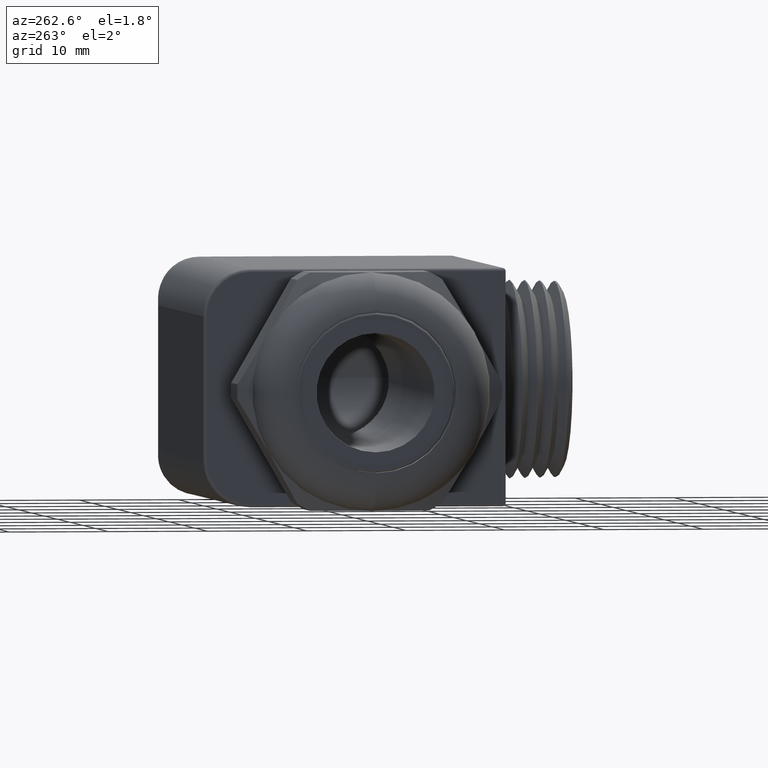
[diagram: clean part render]
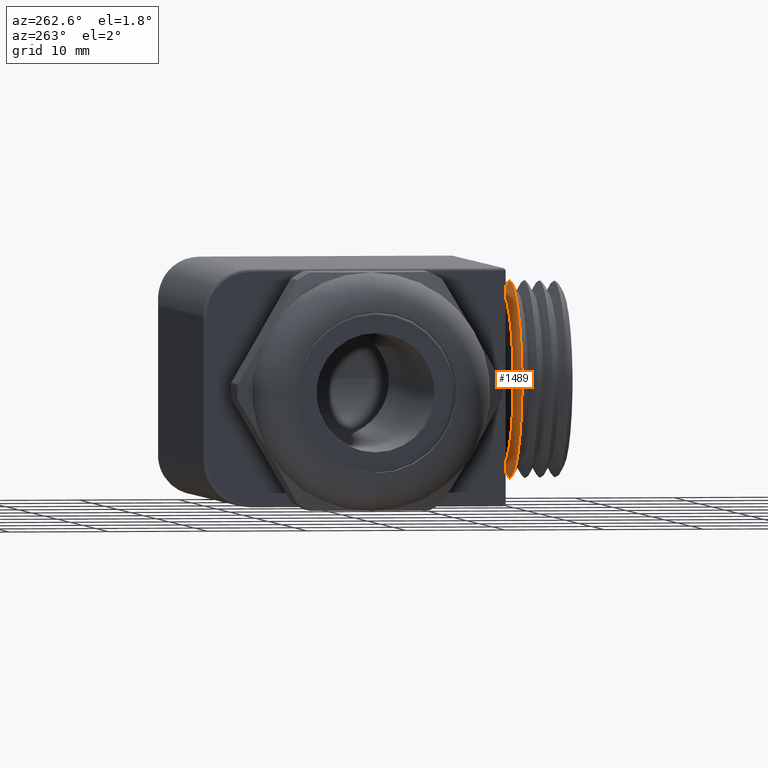
[diagram: same view with one face highlighted and labeled with its STEP entity id]
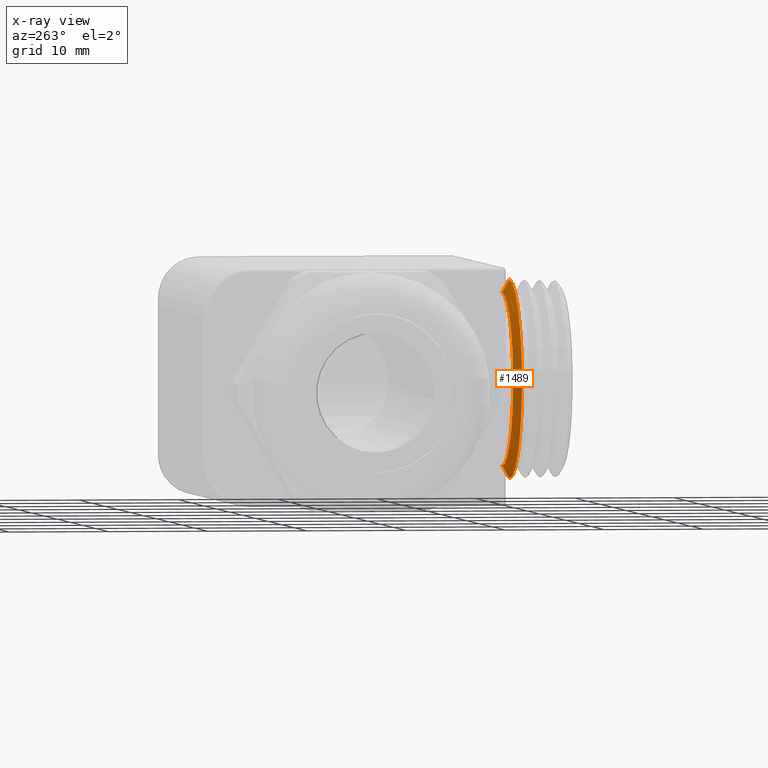
[diagram: x-ray of the same camera — body ghosted, the highlighted face saturated]
A machine part, auxiliary view. The second image highlights one B-rep face of the part: STEP entity #1489.
The next image is the same camera in x-ray: the body ghosted, the highlighted face saturated — about 2% of this face is hidden behind the body in this view.
In plain terms, the highlighted conical surface has half-angle 60 deg.
Its self-contained STEP definition (entity closure, byte-faithful):
#943 = VERTEX_POINT ( 'NONE', #3411 ) ;
#945 = VERTEX_POINT ( 'NONE', #3430 ) ;
#957 = VERTEX_POINT ( 'NONE', #3383 ) ;
#986 = EDGE_CURVE ( 'NONE', #945, #1066, #3337, .T. ) ;
#1066 = VERTEX_POINT ( 'NONE', #3568 ) ;
#1071 = EDGE_CURVE ( 'NONE', #943, #945, #3514, .T. ) ;
#1083 = EDGE_CURVE ( 'NONE', #957, #1066, #3533, .T. ) ;
#1188 = EDGE_CURVE ( 'NONE', #943, #957, #3678, .T. ) ;
#1407 = EDGE_LOOP ( 'NONE', ( #1434, #1422, #1420, #1427 ) ) ;
#1420 = ORIENTED_EDGE ( 'NONE', *, *, #1071, .T. ) ;
#1422 = ORIENTED_EDGE ( 'NONE', *, *, #1188, .F. ) ;
#1427 = ORIENTED_EDGE ( 'NONE', *, *, #986, .T. ) ;
#1434 = ORIENTED_EDGE ( 'NONE', *, *, #1083, .F. ) ;
#1489 = ADVANCED_FACE ( 'NONE', ( #4172 ), #4171, .T. ) ;
#3329 = DIRECTION ( 'NONE',  ( 0.0000000000000000000, 0.0000000000000000000, -1.000000000000000000 ) ) ;
#3330 = DIRECTION ( 'NONE',  ( 0.0000000000000000000, 1.000000000000000000, 0.0000000000000000000 ) ) ;
#3331 = CARTESIAN_POINT ( 'NONE',  ( 1.000155367231638600, -0.7442391749876219300, -2.785979454945908300E-017 ) ) ;
#3332 = AXIS2_PLACEMENT_3D ( 'NONE', #3331, #3330, #3329 ) ;
#3337 = CIRCLE ( 'NONE', #3332, 0.3912229642765701600 ) ;
#3383 = CARTESIAN_POINT ( 'NONE',  ( 1.000155367231638300, -0.7155709431788047600, 0.3415681302205366100 ) ) ;
#3411 = CARTESIAN_POINT ( 'NONE',  ( 1.000155367231638300, -0.7155709431788047600, -0.3415681302205366100 ) ) ;
#3430 = CARTESIAN_POINT ( 'NONE',  ( 1.000155367231638600, -0.7442391749876219300, -0.3912229642765702200 ) ) ;
#3505 = DIRECTION ( 'NONE',  ( 0.0000000000000000000, -0.4999999999999953900, -0.8660254037844411500 ) ) ;
#3506 = VECTOR ( 'NONE', #3505, 39.37007874015748900 ) ;
#3507 = CARTESIAN_POINT ( 'NONE',  ( 1.000155367231638300, -0.7451342614456774000, -0.3927732994990896800 ) ) ;
#3514 = LINE ( 'NONE', #3507, #3506 ) ;
#3533 = LINE ( 'NONE', #3584, #3583 ) ;
#3568 = CARTESIAN_POINT ( 'NONE',  ( 1.000155367231638600, -0.7442391749876219300, 0.3912229642765702200 ) ) ;
#3582 = DIRECTION ( 'NONE',  ( 1.060575238724909900E-016, -0.4999999999999953900, 0.8660254037844411500 ) ) ;
#3583 = VECTOR ( 'NONE', #3582, 39.37007874015748900 ) ;
#3584 = CARTESIAN_POINT ( 'NONE',  ( 1.000155367231638300, -0.7451342614456774000, 0.3927732994990896800 ) ) ;
#3674 = DIRECTION ( 'NONE',  ( 0.0000000000000000000, 0.0000000000000000000, 1.000000000000000000 ) ) ;
#3675 = DIRECTION ( 'NONE',  ( 0.0000000000000000000, 1.000000000000000000, 0.0000000000000000000 ) ) ;
#3676 = CARTESIAN_POINT ( 'NONE',  ( 1.000155367231638300, -0.7155709431788047600, 0.0000000000000000000 ) ) ;
#3677 = AXIS2_PLACEMENT_3D ( 'NONE', #3676, #3675, #3674 ) ;
#3678 = CIRCLE ( 'NONE', #3677, 0.3415681302205366100 ) ;
#4167 = DIRECTION ( 'NONE',  ( 0.0000000000000000000, 0.0000000000000000000, -1.000000000000000000 ) ) ;
#4168 = DIRECTION ( 'NONE',  ( 0.0000000000000000000, -1.000000000000000000, 0.0000000000000000000 ) ) ;
#4169 = AXIS2_PLACEMENT_3D ( 'NONE', #4176, #4168, #4167 ) ;
#4171 = CONICAL_SURFACE ( 'NONE', #4169, 0.3927732994990896800, 1.047197551196603000 ) ;
#4172 = FACE_OUTER_BOUND ( 'NONE', #1407, .T. ) ;
#4176 = CARTESIAN_POINT ( 'NONE',  ( 1.000155367231638300, -0.7451342614456774000, 0.0000000000000000000 ) ) ;